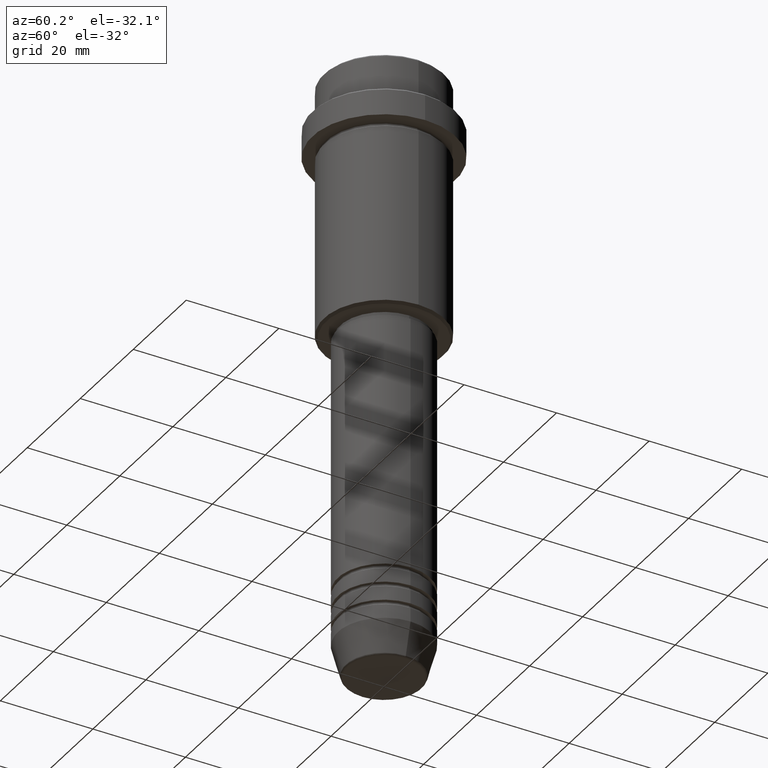
[diagram: clean part render]
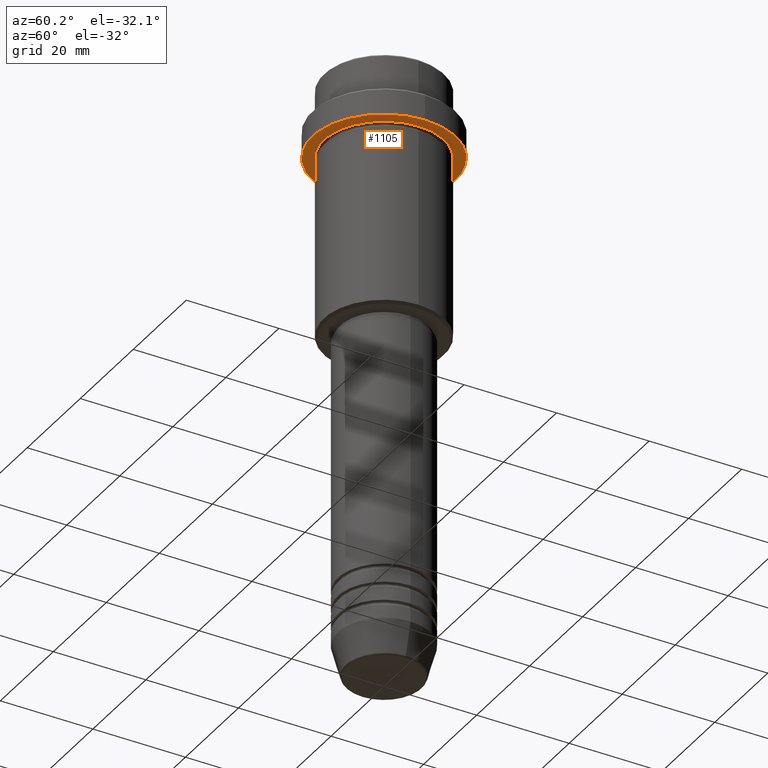
[diagram: same view with one face highlighted and labeled with its STEP entity id]
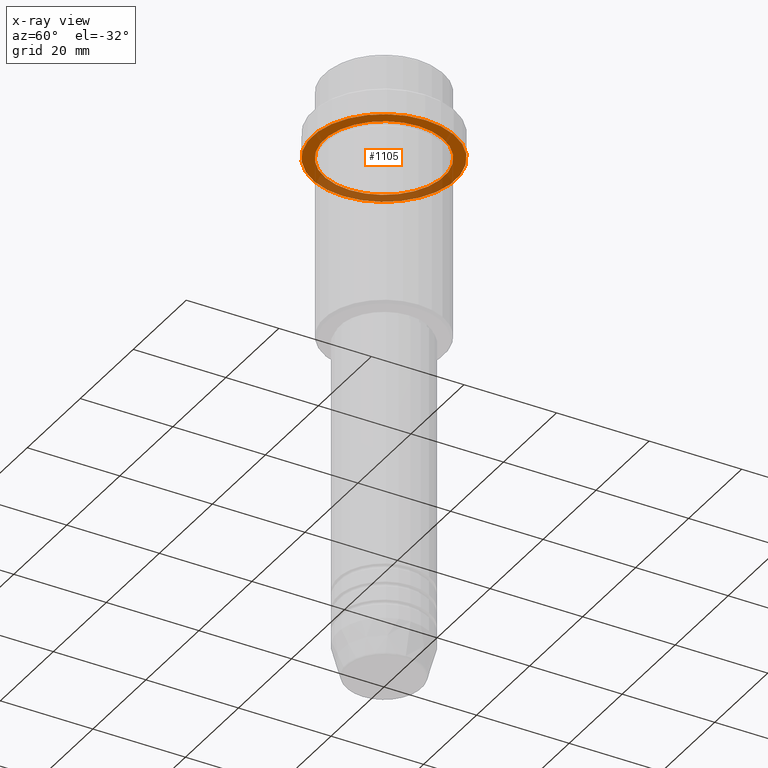
[diagram: x-ray of the same camera — body ghosted, the highlighted face saturated]
A machine part, auxiliary view. The second image highlights one B-rep face of the part: STEP entity #1105.
The next image is the same camera in x-ray: the body ghosted, the highlighted face saturated — about 33% of this face is hidden behind the body in this view.
In plain terms, the highlighted planar face has unit normal (0, 0, -1).
Its self-contained STEP definition (entity closure, byte-faithful):
#9 = CARTESIAN_POINT ( 'NONE',  ( 0.000000000000000000, 0.000000000000000000, -15.00000000000000178 ) ) ;
#24 = DIRECTION ( 'NONE',  ( -0.000000000000000000, -0.000000000000000000, 1.000000000000000000 ) ) ;
#48 = VERTEX_POINT ( 'NONE', #637 ) ;
#71 = EDGE_LOOP ( 'NONE', ( #353, #329 ) ) ;
#180 = AXIS2_PLACEMENT_3D ( 'NONE', #607, #376, #1163 ) ;
#229 = ORIENTED_EDGE ( 'NONE', *, *, #389, .F. ) ;
#230 = CIRCLE ( 'NONE', #1280, 15.50000000000000000 ) ;
#243 = DIRECTION ( 'NONE',  ( 1.000000000000000000, 0.000000000000000000, 0.000000000000000000 ) ) ;
#307 = EDGE_CURVE ( 'NONE', #1054, #48, #992, .T. ) ;
#329 = ORIENTED_EDGE ( 'NONE', *, *, #307, .T. ) ;
#353 = ORIENTED_EDGE ( 'NONE', *, *, #994, .T. ) ;
#376 = DIRECTION ( 'NONE',  ( -0.000000000000000000, -0.000000000000000000, 1.000000000000000000 ) ) ;
#389 = EDGE_CURVE ( 'NONE', #621, #1099, #501, .T. ) ;
#391 = CIRCLE ( 'NONE', #1192, 12.99999999999999467 ) ;
#443 = DIRECTION ( 'NONE',  ( -1.000000000000000000, 0.000000000000000000, -0.000000000000000000 ) ) ;
#487 = EDGE_LOOP ( 'NONE', ( #1043, #229 ) ) ;
#501 = CIRCLE ( 'NONE', #1102, 15.50000000000000000 ) ;
#505 = DIRECTION ( 'NONE',  ( -0.000000000000000000, -0.000000000000000000, 1.000000000000000000 ) ) ;
#593 = FACE_OUTER_BOUND ( 'NONE', #487, .T. ) ;
#607 = CARTESIAN_POINT ( 'NONE',  ( 0.000000000000000000, 0.000000000000000000, -15.00000000000000000 ) ) ;
#621 = VERTEX_POINT ( 'NONE', #1004 ) ;
#637 = CARTESIAN_POINT ( 'NONE',  ( -12.99999999999999467, 0.000000000000000000, -15.00000000000000000 ) ) ;
#696 = EDGE_CURVE ( 'NONE', #1099, #621, #230, .T. ) ;
#743 = DIRECTION ( 'NONE',  ( -0.000000000000000000, -0.000000000000000000, 1.000000000000000000 ) ) ;
#809 = CARTESIAN_POINT ( 'NONE',  ( 0.000000000000000000, 15.50000000000000000, -15.00000000000000000 ) ) ;
#869 = CARTESIAN_POINT ( 'NONE',  ( 12.99999999999999467, 1.592040838891558504E-15, -15.00000000000000000 ) ) ;
#970 = DIRECTION ( 'NONE',  ( -1.000000000000000000, 0.000000000000000000, 0.000000000000000000 ) ) ;
#990 = CARTESIAN_POINT ( 'NONE',  ( 0.000000000000000000, 0.000000000000000000, -15.00000000000000000 ) ) ;
#992 = CIRCLE ( 'NONE', #180, 12.99999999999999467 ) ;
#994 = EDGE_CURVE ( 'NONE', #48, #1054, #391, .T. ) ;
#998 = CARTESIAN_POINT ( 'NONE',  ( 15.50000000000000000, 0.000000000000000000, -15.00000000000000178 ) ) ;
#1004 = CARTESIAN_POINT ( 'NONE',  ( -15.50000000000000000, 1.898202538678397557E-15, -15.00000000000000178 ) ) ;
#1028 = PLANE ( 'NONE',  #1262 ) ;
#1043 = ORIENTED_EDGE ( 'NONE', *, *, #696, .F. ) ;
#1053 = CARTESIAN_POINT ( 'NONE',  ( 0.000000000000000000, 0.000000000000000000, -15.00000000000000178 ) ) ;
#1054 = VERTEX_POINT ( 'NONE', #869 ) ;
#1099 = VERTEX_POINT ( 'NONE', #998 ) ;
#1102 = AXIS2_PLACEMENT_3D ( 'NONE', #1053, #505, #1349 ) ;
#1105 = ADVANCED_FACE ( 'NONE', ( #1238, #593 ), #1028, .T. ) ;
#1163 = DIRECTION ( 'NONE',  ( -1.000000000000000000, 0.000000000000000000, 0.000000000000000000 ) ) ;
#1192 = AXIS2_PLACEMENT_3D ( 'NONE', #990, #743, #970 ) ;
#1238 = FACE_BOUND ( 'NONE', #71, .T. ) ;
#1262 = AXIS2_PLACEMENT_3D ( 'NONE', #809, #1351, #443 ) ;
#1280 = AXIS2_PLACEMENT_3D ( 'NONE', #9, #24, #243 ) ;
#1349 = DIRECTION ( 'NONE',  ( 1.000000000000000000, 0.000000000000000000, 0.000000000000000000 ) ) ;
#1351 = DIRECTION ( 'NONE',  ( 0.000000000000000000, 0.000000000000000000, -1.000000000000000000 ) ) ;